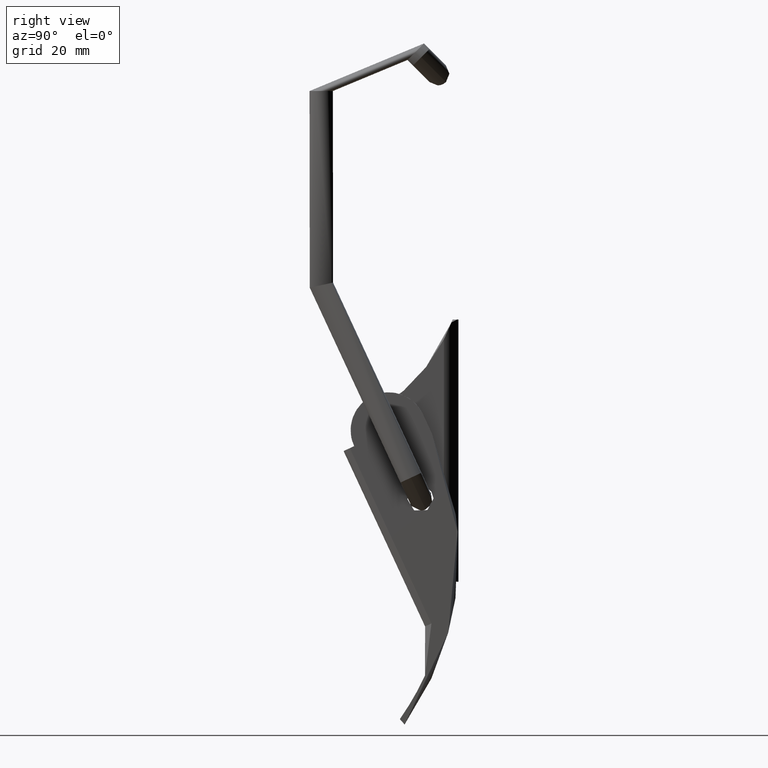
[diagram: clean part render]
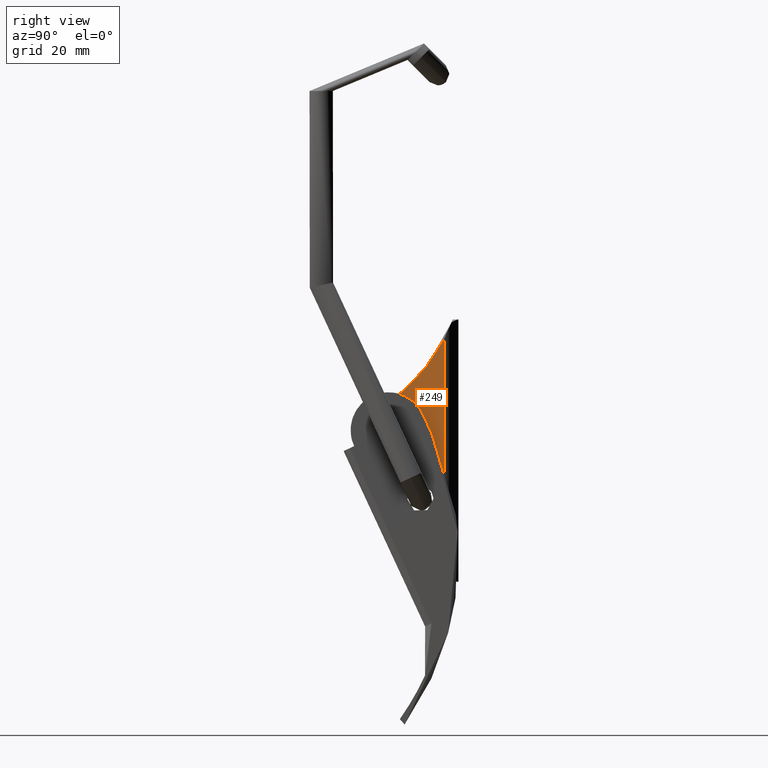
[diagram: same view with one face highlighted and labeled with its STEP entity id]
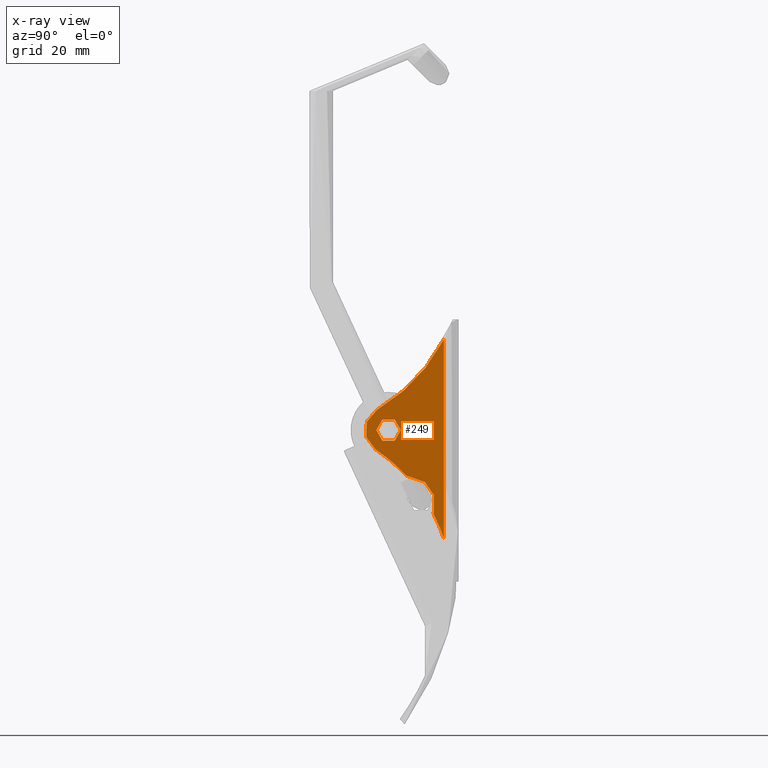
[diagram: x-ray of the same camera — body ghosted, the highlighted face saturated]
A machine part, right view. The second image highlights one B-rep face of the part: STEP entity #249.
The next image is the same camera in x-ray: the body ghosted, the highlighted face saturated — about 0% of this face is hidden behind the body in this view.
In plain terms, the highlighted planar face has unit normal (1, 0, 0).
Its self-contained STEP definition (entity closure, byte-faithful):
#249=ADVANCED_FACE('',(#931,#932),#930,.T.);
#930=PLANE('',#1779);
#931=FACE_OUTER_BOUND('',#1780,.T.);
#932=FACE_BOUND('',#1781,.T.);
#1776=CARTESIAN_POINT('',(-1.90129845101E+01,2.10000000000E+01,-1.13780073493E+01));
#1777=DIRECTION('',(-0.00000000000E+00,1.00000000000E+00,0.00000000000E+00));
#1778=DIRECTION('',(0.00000000000E+00,0.00000000000E+00,1.00000000000E+00));
#1779=AXIS2_PLACEMENT_3D('',#1776,#1777,#1778);
#1780=EDGE_LOOP('',(#2573,#2574,#2575,#2576,#2577,#2578,#2579,#2580));
#1781=EDGE_LOOP('',(#2581,#2582));
#2573=ORIENTED_EDGE('',*,*,#2970,.T.);
#2574=ORIENTED_EDGE('',*,*,#2982,.T.);
#2575=ORIENTED_EDGE('',*,*,#2934,.T.);
#2576=ORIENTED_EDGE('',*,*,#2958,.F.);
#2577=ORIENTED_EDGE('',*,*,#2960,.T.);
#2578=ORIENTED_EDGE('',*,*,#2962,.F.);
#2579=ORIENTED_EDGE('',*,*,#2974,.T.);
#2580=ORIENTED_EDGE('',*,*,#2972,.F.);
#2581=ORIENTED_EDGE('',*,*,#2983,.T.);
#2582=ORIENTED_EDGE('',*,*,#2984,.T.);
#2934=EDGE_CURVE('',#4036,#4037,#4038,.T.);
#2958=EDGE_CURVE('',#4185,#4037,#4192,.T.);
#2960=EDGE_CURVE('',#4185,#4198,#4205,.T.);
#2962=EDGE_CURVE('',#4211,#4198,#4218,.T.);
#2970=EDGE_CURVE('',#4271,#4264,#4272,.T.);
#2972=EDGE_CURVE('',#4271,#4284,#4285,.T.);
#2974=EDGE_CURVE('',#4211,#4284,#4297,.T.);
#2982=EDGE_CURVE('',#4264,#4036,#4349,.T.);
#2983=EDGE_CURVE('',#4355,#4356,#4357,.T.);
#2984=EDGE_CURVE('',#4356,#4355,#4363,.T.);
#4036=VERTEX_POINT('',#5794);
#4037=VERTEX_POINT('',#5795);
#4038=CIRCLE('',#5799,3.00000000000E+01);
#4185=VERTEX_POINT('',#5944);
#4192=CIRCLE('',#5951,4.00000000000E+00);
#4198=VERTEX_POINT('',#5952);
#4205=CIRCLE('',#5959,3.00000000000E+01);
#4211=VERTEX_POINT('',#5960);
#4218=CIRCLE('',#5967,1.00000000000E+00);
#4264=VERTEX_POINT('',#5994);
#4271=VERTEX_POINT('',#6001);
#4272=CIRCLE('',#6005,3.00000000000E+01);
#4284=VERTEX_POINT('',#6009);
#4285=CIRCLE('',#6013,1.00000000000E+00);
#4297=CIRCLE('',#6020,4.50000000000E+00);
#4349=LINE('',#6052,#6053);
#4355=VERTEX_POINT('',#6055);
#4356=VERTEX_POINT('',#6056);
#4357=CIRCLE('',#6060,2.10000000000E+00);
#4363=CIRCLE('',#6064,2.10000000000E+00);
#5794=CARTESIAN_POINT('',(-1.55907781039E+01,2.10000000000E+01,-9.50000000000E+00));
#5795=CARTESIAN_POINT('',(-3.45339496623E+00,2.10000000000E+01,2.01843087750E+00));
#5796=CARTESIAN_POINT('',(-2.93538572129E+01,2.10000000000E+01,1.71566624587E+01));
#5797=DIRECTION('',(0.00000000000E+00,-1.00000000000E+00,0.00000000000E+00));
#5798=DIRECTION('',(-0.00000000000E+00,-0.00000000000E+00,-1.00000000000E+00));
#5799=AXIS2_PLACEMENT_3D('',#5796,#5797,#5798);
#5944=CARTESIAN_POINT('',(3.32383886292E+00,2.10000000000E+01,2.22533036049E+00));
#5948=CARTESIAN_POINT('',(0.00000000000E+00,2.10000000000E+01,-2.84217094304E-14));
#5949=DIRECTION('',(0.00000000000E+00,-1.00000000000E+00,0.00000000000E+00));
#5950=DIRECTION('',(-0.00000000000E+00,-0.00000000000E+00,-1.00000000000E+00));
#5951=AXIS2_PLACEMENT_3D('',#5948,#5949,#5950);
#5952=CARTESIAN_POINT('',(7.68768261945E+00,2.10000000000E+01,-2.92691996922E+00));
#5956=CARTESIAN_POINT('',(2.82526303348E+01,2.10000000000E+01,1.89153080642E+01));
#5957=DIRECTION('',(0.00000000000E+00,-1.00000000000E+00,0.00000000000E+00));
#5958=DIRECTION('',(-0.00000000000E+00,-0.00000000000E+00,-1.00000000000E+00));
#5959=AXIS2_PLACEMENT_3D('',#5956,#5957,#5958);
#5960=CARTESIAN_POINT('',(8.00178720549E+00,2.10000000000E+01,-3.62681346664E+00));
#5964=CARTESIAN_POINT('',(7.00218436227E+00,2.10000000000E+01,-3.65499423700E+00));
#5965=DIRECTION('',(0.00000000000E+00,-1.00000000000E+00,0.00000000000E+00));
#5966=DIRECTION('',(-0.00000000000E+00,-0.00000000000E+00,-1.00000000000E+00));
#5967=AXIS2_PLACEMENT_3D('',#5964,#5965,#5966);
#5994=CARTESIAN_POINT('',(1.86312859580E+01,2.10000000000E+01,-9.50000000000E+00));
#6001=CARTESIAN_POINT('',(1.46696021857E+01,2.10000000000E+01,-7.83354885156E+00));
#6002=CARTESIAN_POINT('',(2.82526303348E+01,2.10000000000E+01,1.89153080642E+01));
#6003=DIRECTION('',(0.00000000000E+00,-1.00000000000E+00,0.00000000000E+00));
#6004=DIRECTION('',(-0.00000000000E+00,-0.00000000000E+00,-1.00000000000E+00));
#6005=AXIS2_PLACEMENT_3D('',#6002,#6003,#6004);
#6009=CARTESIAN_POINT('',(1.39046828387E+01,2.10000000000E+01,-7.77514515807E+00));
#6010=CARTESIAN_POINT('',(1.42168345807E+01,2.10000000000E+01,-8.72517741542E+00));
#6011=DIRECTION('',(0.00000000000E+00,-1.00000000000E+00,0.00000000000E+00));
#6012=DIRECTION('',(-0.00000000000E+00,-0.00000000000E+00,-1.00000000000E+00));
#6013=AXIS2_PLACEMENT_3D('',#6010,#6011,#6012);
#6017=CARTESIAN_POINT('',(1.25000000000E+01,2.10000000000E+01,-3.50000000000E+00));
#6018=DIRECTION('',(0.00000000000E+00,-1.00000000000E+00,-0.00000000000E+00));
#6019=DIRECTION('',(3.12151741942E-01,0.00000000000E+00,-9.50032257348E-01));
#6020=AXIS2_PLACEMENT_3D('',#6017,#6018,#6019);
#6052=CARTESIAN_POINT('',(1.86312859580E+01,2.10000000000E+01,-9.50000000000E+00));
#6053=VECTOR('',#6054,3.42220640619E+01);
#6054=DIRECTION('',(-1.00000000000E+00,0.00000000000E+00,0.00000000000E+00));
#6055=CARTESIAN_POINT('',(0.00000000000E+00,2.10000000000E+01,2.10000000000E+00));
#6056=CARTESIAN_POINT('',(5.18104078158E-16,2.10000000000E+01,-2.10000000000E+00));
#6057=CARTESIAN_POINT('',(0.00000000000E+00,2.10000000000E+01,-2.84217094304E-14));
#6058=DIRECTION('',(0.00000000000E+00,-1.00000000000E+00,0.00000000000E+00));
#6059=DIRECTION('',(-1.22460635382E-16,0.00000000000E+00,1.00000000000E+00));
#6060=AXIS2_PLACEMENT_3D('',#6057,#6058,#6059);
#6061=CARTESIAN_POINT('',(0.00000000000E+00,2.10000000000E+01,-2.84217094304E-14));
#6062=DIRECTION('',(0.00000000000E+00,-1.00000000000E+00,0.00000000000E+00));
#6063=DIRECTION('',(-1.22460635382E-16,0.00000000000E+00,1.00000000000E+00));
#6064=AXIS2_PLACEMENT_3D('',#6061,#6062,#6063);